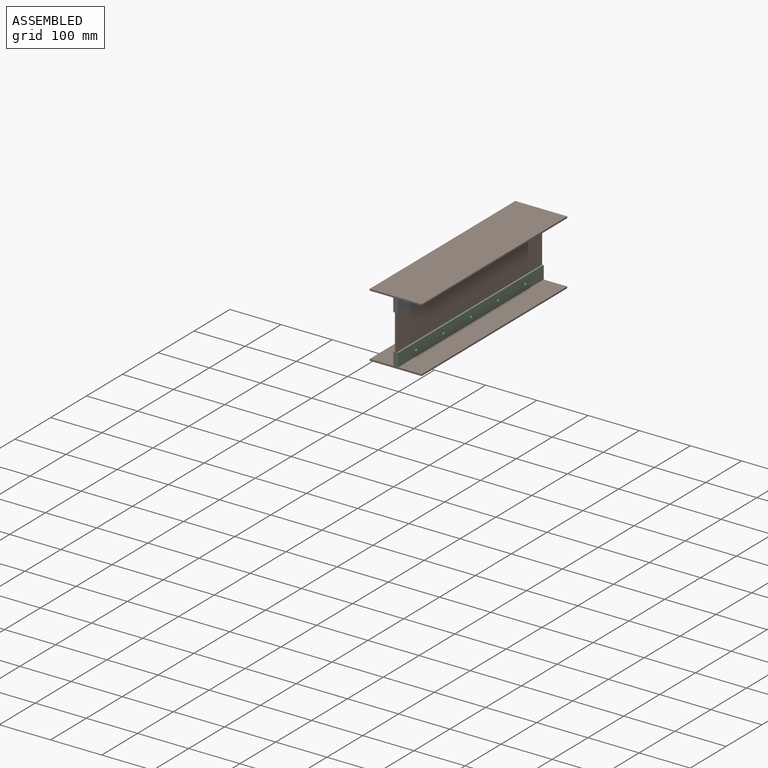
[diagram: assembled view]
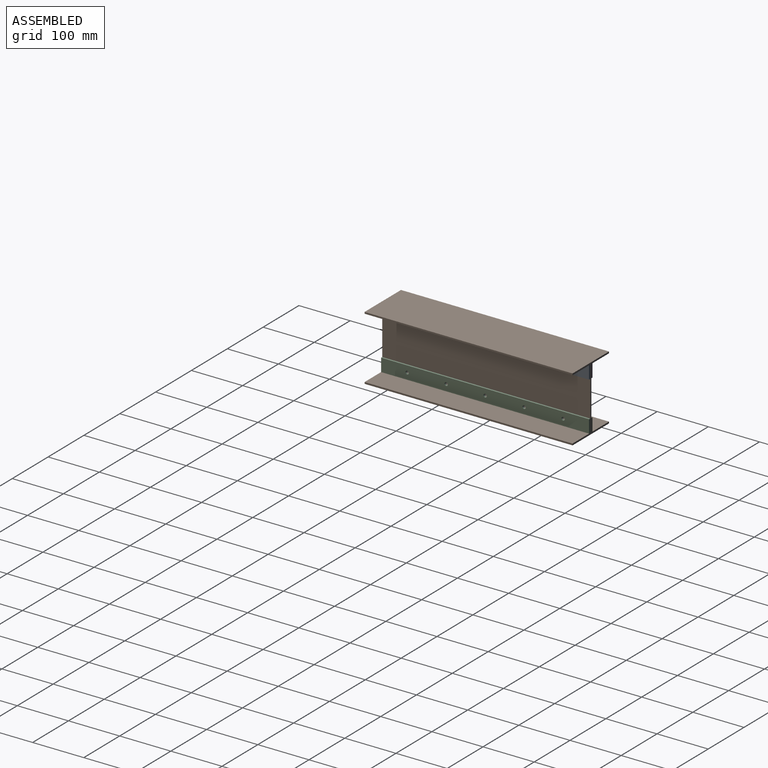
[diagram: assembled view, second angle]
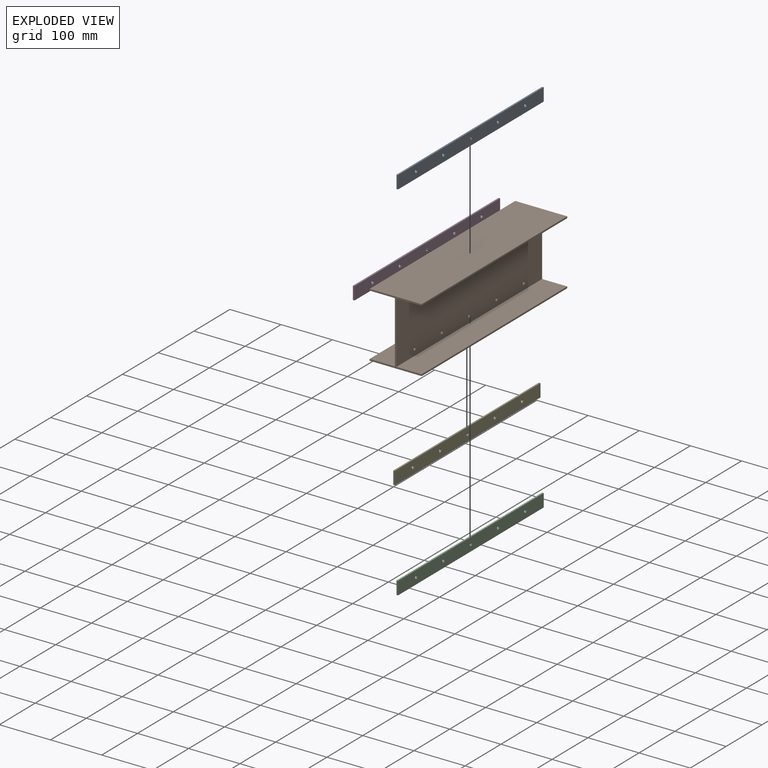
[diagram: exploded view]
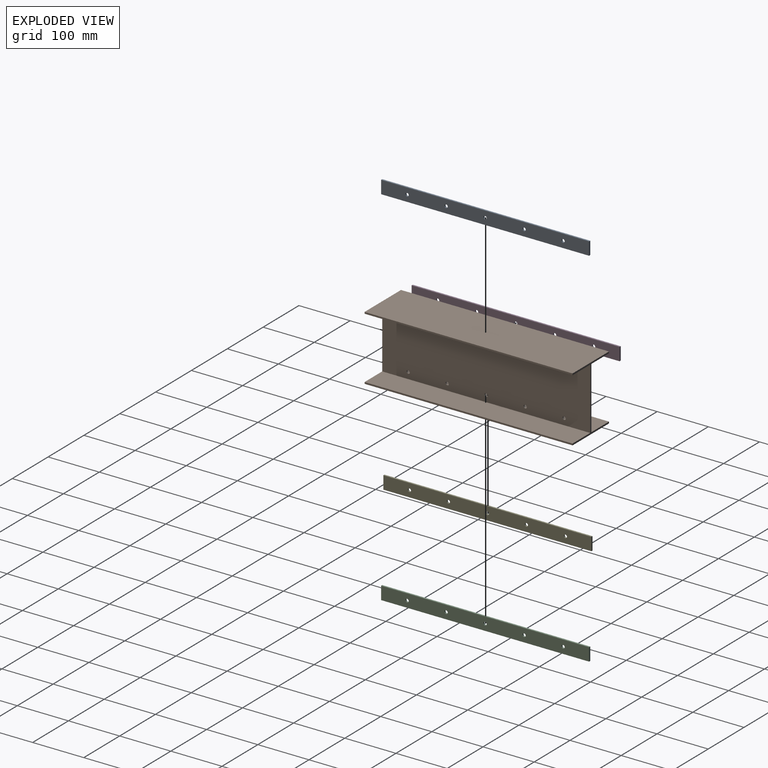
[diagram: exploded view, second angle]
ASSEMBLY  parts=5 mates=12
PART A: 11 faces, bbox 3.2x406.4x25.4 mm
  f0: plane 406.4x3.18mm, normal (0,0,1), area 1290.3mm2, adj f1,f3,f4,f5
  f1: plane 406.4x25.4mm, normal (-1,0,0), area 10164.2mm2, adj f0,f2,f4,f5,f6,f7,f8,f9
  f2: plane 406.4x3.18mm, normal (0,0,-1), area 1290.3mm2, adj f1,f3,f4,f5
  f3: plane 406.4x25.4mm, normal (1,0,0), area 10164.2mm2, adj f0,f2,f4,f5,f6,f7,f8,f9
  f4: plane 25.4x3.18mm, normal (0,-1,0), area 80.6mm2, adj f0,f1,f2,f3
  f5: plane 25.4x3.18mm, normal (0,1,0), area 80.6mm2, adj f0,f1,f2,f3
  f6: cylinder r=3.17mm len=6.35mm, axis (1,0,0), area 63.3mm2, adj f1,f3
  f7: cylinder r=3.17mm len=6.35mm, axis (1,0,0), area 63.3mm2, adj f1,f3
  f8: cylinder r=3.17mm len=6.35mm, axis (1,0,0), area 63.3mm2, adj f1,f3
  f9: cylinder r=3.17mm len=6.35mm, axis (1,0,0), area 63.3mm2, adj f1,f3
  f10: cylinder r=3.17mm len=6.35mm, axis (1,0,0), area 63.3mm2, adj f1,f3
PART B: 24 faces, bbox 101.6x406.4x127 mm
  f0: plane 406.4x3.18mm, normal (1,0,0), area 1290.3mm2, adj f1,f11,f12,f13
  f1: plane 406.4x101.6mm, normal (0,0,1), area 41290.2mm2, adj f0,f2,f12,f13
  f2: plane 406.4x3.18mm, normal (-1,0,0), area 1290.3mm2, adj f1,f3,f12,f13
  f3: plane 406.4x49.21mm, normal (0,0,-1), area 20000mm2, adj f2,f4,f12,f13
  f4: plane 406.4x120.65mm, normal (-1,0,0), area 48715.5mm2, adj f3,f5,f12,f13,f14,f15,f16,f17
  f5: plane 406.4x49.21mm, normal (0,0,1), area 20000mm2, adj f4,f6,f12,f13
  f6: plane 406.4x3.18mm, normal (-1,0,0), area 1290.3mm2, adj f5,f7,f12,f13
  f7: plane 406.4x101.6mm, normal (0,0,-1), area 41290.2mm2, adj f6,f8,f12,f13
  f8: plane 406.4x3.18mm, normal (1,0,0), area 1290.3mm2, adj f7,f9,f12,f13
  f9: plane 406.4x49.21mm, normal (0,0,1), area 20000mm2, adj f8,f10,f12,f13
  f10: plane 406.4x120.65mm, normal (1,0,0), area 48715.5mm2, adj f9,f11,f12,f13,f14,f15,f16,f17
  f11: plane 406.4x49.21mm, normal (0,0,-1), area 20000mm2, adj f0,f10,f12,f13
  f12: plane 127x101.6mm, normal (0,-1,0), area 1028.2mm2, adj f0,f1,f2,f3,f4,f5,f6,f7
  f13: plane 127x101.6mm, normal (0,1,0), area 1028.2mm2, adj f0,f1,f2,f3,f4,f5,f6,f7
  f14: cylinder r=3.17mm len=6.35mm, axis (1,0,0), area 63.3mm2, adj f4,f10
  f15: cylinder r=3.17mm len=6.35mm, axis (1,0,0), area 63.3mm2, adj f4,f10
  f16: cylinder r=3.17mm len=6.35mm, axis (1,0,0), area 63.3mm2, adj f4,f10
  f17: cylinder r=3.17mm len=6.35mm, axis (1,0,0), area 63.3mm2, adj f4,f10
  f18: cylinder r=3.17mm len=6.35mm, axis (1,0,0), area 63.3mm2, adj f4,f10
  f19: cylinder r=3.17mm len=6.35mm, axis (1,0,0), area 63.3mm2, adj f4,f10
  f20: cylinder r=3.17mm len=6.35mm, axis (1,0,0), area 63.3mm2, adj f4,f10
  f21: cylinder r=3.17mm len=6.35mm, axis (1,0,0), area 63.3mm2, adj f4,f10
  f22: cylinder r=3.17mm len=6.35mm, axis (1,0,0), area 63.3mm2, adj f4,f10
  f23: cylinder r=3.17mm len=6.35mm, axis (1,0,0), area 63.3mm2, adj f4,f10
PART C: same geometry as A
PART D: same geometry as A
PART E: same geometry as A
PLACE A t=(-251.64,-40.99,103.8)mm
PLACE B t=(-254.81,-40.99,56.18)mm fixed
PLACE C t=(-251.64,-40.99,8.55)mm
PLACE D t=(-257.99,-40.99,103.8)mm
PLACE E t=(-257.99,-40.99,8.55)mm
MATE planar D.f4 <-> B.f12  axis (0,-1,0) through (-257.99,-244.19,103.8)mm
MATE planar A.f0 <-> B.f11  axis (0,0,1) through (-251.64,-40.99,116.5)mm
MATE planar E.f2 <-> B.f5  axis (0,0,-1) through (-259.57,-244.19,-4.15)mm
MATE planar B.f9 <-> C.f2  axis (0,0,1) through (-228.62,-40.99,-4.15)mm
MATE planar D.f0 <-> B.f3  axis (0,0,1) through (-257.99,-40.99,116.5)mm
MATE planar B.f4 <-> D.f3  axis (-1,0,0) through (-256.4,-40.99,56.18)mm
MATE planar B.f10 <-> C.f6  axis (1,0,0) through (-253.22,-40.99,56.18)mm
MATE planar E.f4 <-> B.f12  axis (0,-1,0) through (-259.57,-244.19,8.55)mm
MATE planar B.f10 <-> A.f6  axis (1,0,0) through (-253.22,-40.99,56.18)mm
MATE planar C.f4 <-> E.f4  axis (0,-1,0) through (-250.05,-244.19,21.25)mm
MATE planar A.f4 <-> B.f12  axis (0,-1,0) through (-251.64,-244.19,103.8)mm
MATE planar B.f4 <-> E.f7  axis (-1,0,0) through (-256.4,-244.19,56.18)mm
